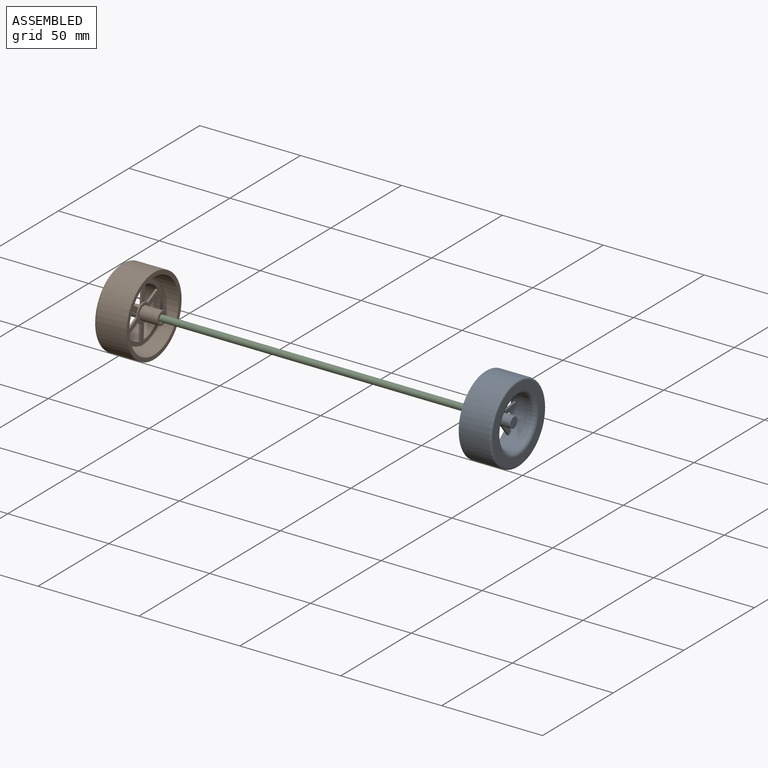
[diagram: assembled view]
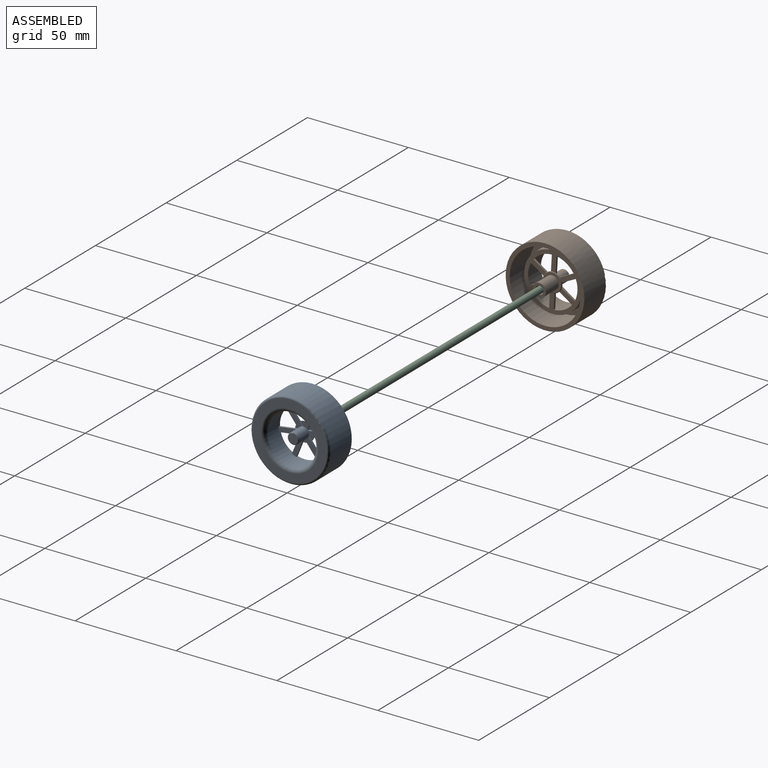
[diagram: assembled view, second angle]
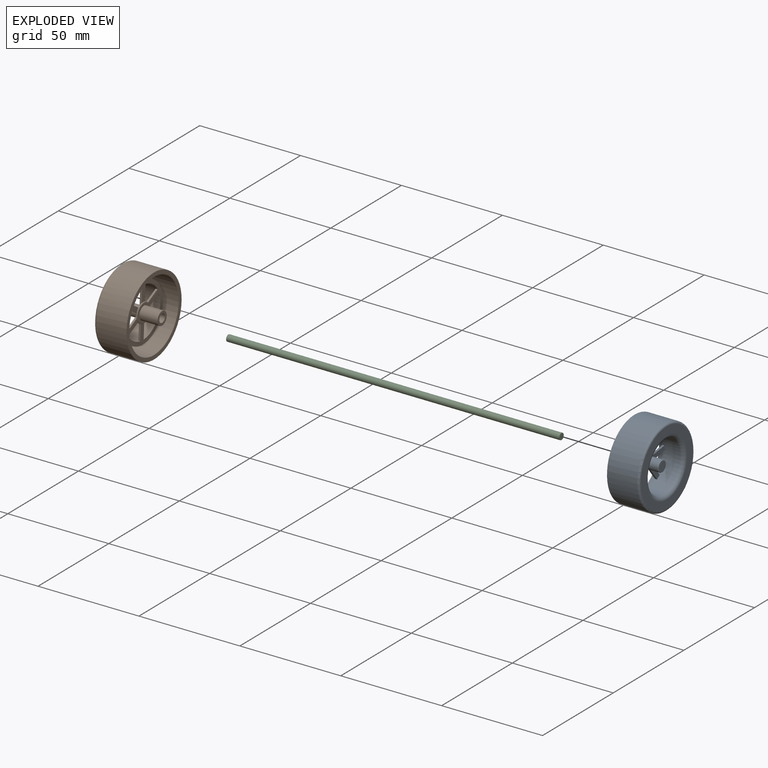
[diagram: exploded view]
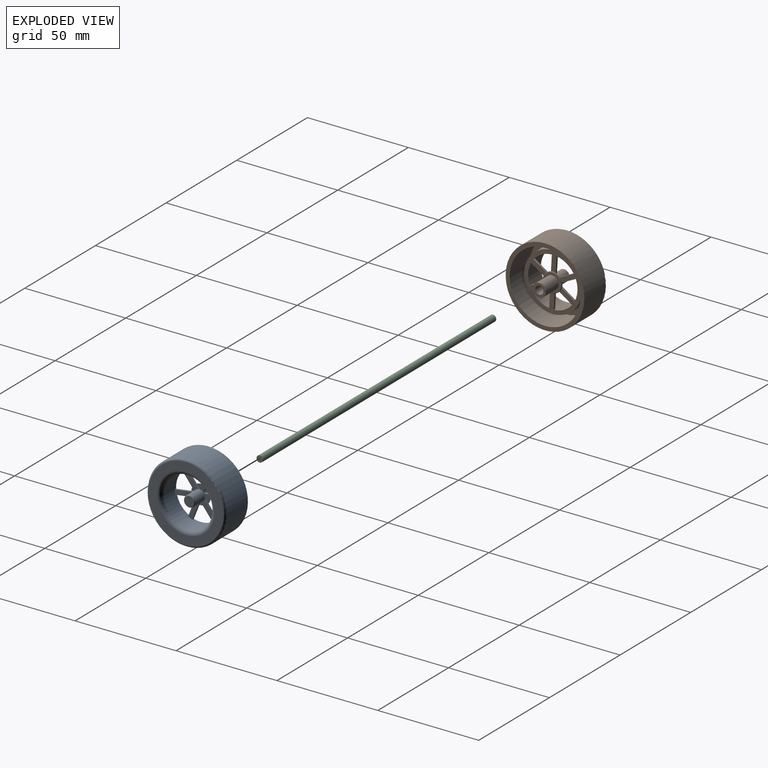
[diagram: exploded view, second angle]
ASSEMBLY  parts=3 mates=2
PART A: 44 faces, bbox 42.2x20x42.2 mm
  f0: plane 9.56x6.86mm, normal (0,-1,0), area 22.2mm2, adj f5,f24,f25,f41
  f1: plane 9.56x6.86mm, normal (0,-1,0), area 22.2mm2, adj f5,f22,f23,f41
  f2: plane 9.76x2.32mm, normal (0,-1,0), area 22.2mm2, adj f5,f14,f16,f41
  f3: plane 9.56x6.86mm, normal (0,-1,0), area 22.2mm2, adj f5,f19,f20,f41
  f4: plane 9.56x6.86mm, normal (0,-1,0), area 22.2mm2, adj f5,f18,f21,f41
  f5: cylinder r=12.25mm len=24.5mm, axis (0,1,0), area 640.3mm2, adj f0,f1,f2,f3,f4,f12,f13,f14
  f6: cylinder r=19.5mm len=39mm, axis (0,1,0), area 1837.8mm2, adj f8,f39
  f7: plane 37x37mm, normal (0,-1,0), area 437.3mm2, adj f39,f40
  f8: plane 39x39mm, normal (0,1,0), area 232.5mm2, adj f6,f10
  f9: cylinder r=14.25mm len=28.5mm, axis (0,1,0), area 761.1mm2, adj f11,f12
  f10: cylinder r=17.5mm len=35mm, axis (0,1,0), area 1539.4mm2, adj f8,f11
  f11: plane 35x35mm, normal (0,1,0), area 324.2mm2, adj f9,f10
  f12: plane 28.5x28.5mm, normal (0,1,0), area 271.3mm2, adj f5,f9,f14,f15,f16,f17,f18,f19
  f13: plane 9.76x2.32mm, normal (0,-1,0), area 22.2mm2, adj f5,f15,f17,f41
  f14: plane 9.7x1mm, normal (1,0,0), area 9.7mm2, adj f2,f5,f12,f29,f41
  f15: plane 9.7x1mm, normal (-1,0,0), area 9.7mm2, adj f5,f12,f13,f28,f41
  f16: plane 9.7x1mm, normal (-1,0,0), area 9.7mm2, adj f2,f5,f12,f30,f41
  f17: plane 9.7x1mm, normal (1,0,0), area 9.7mm2, adj f5,f12,f13,f26,f41
  f18: plane 8.4x4.85mm, normal (-0.5,0,-0.87), area 9.7mm2, adj f4,f5,f12,f27,f41
  f19: plane 8.4x4.85mm, normal (-0.5,0,0.87), area 9.7mm2, adj f3,f5,f12,f27,f41
  f20: plane 8.4x4.85mm, normal (0.5,0,-0.87), area 9.7mm2, adj f3,f5,f12,f30,f41
  f21: plane 8.4x4.85mm, normal (0.5,0,0.87), area 9.7mm2, adj f4,f5,f12,f28,f41
  f22: plane 8.4x4.85mm, normal (-0.5,0,-0.87), area 9.7mm2, adj f1,f5,f12,f29,f41
  f23: plane 8.4x4.85mm, normal (0.5,0,0.87), area 9.7mm2, adj f1,f5,f12,f33,f41
  f24: plane 8.4x4.85mm, normal (-0.5,0,0.87), area 9.7mm2, adj f0,f5,f12,f26,f41
  f25: plane 8.4x4.85mm, normal (0.5,0,-0.87), area 9.7mm2, adj f0,f5,f12,f33,f41
  f26: plane 2.36x2.25mm, normal (0,-1,0), area 3.1mm2, adj f17,f24,f31,f41
  f27: plane 2.6x2.01mm, normal (0,-1,0), area 3.1mm2, adj f18,f19,f31,f41
  f28: plane 2.36x2.25mm, normal (0,-1,0), area 3.1mm2, adj f15,f21,f31,f41
  f29: plane 2.36x2.25mm, normal (0,-1,0), area 3.1mm2, adj f14,f22,f31,f41
  f30: plane 2.36x2.25mm, normal (0,-1,0), area 3.1mm2, adj f16,f20,f31,f41
  f31: cylinder r=4.75mm len=9.5mm, axis (0,-1,0), area 9mm2, adj f12,f26,f27,f28,f29,f30,f33,f34
  f32: plane 9.1x9.1mm, normal (0,1,0), area 31.9mm2, adj f34,f35
  f33: plane 2.6x2.01mm, normal (0,-1,0), area 3.1mm2, adj f23,f25,f31,f41
  f34: torus R=4.55mm, axis (0,1,0), area 9.2mm2, adj f31,f32
  f35: cylinder r=3.25mm len=9mm, axis (0,-1,0), area 183.8mm2, adj f32,f36
  f36: plane 6.5x6.5mm, normal (0,1,0), area 20.6mm2, adj f35,f37
  f37: cylinder r=2mm len=7.7mm, axis (0,1,0), area 96.7mm2, adj f36,f38
  f38: plane 4x4mm, normal (0,1,0), area 12.6mm2, adj f37
  f39: torus R=18.5mm, axis (0,-1,0), area 188.9mm2, adj f6,f7
  f40: torus R=14.25mm, axis (0,-1,0), area 256.2mm2, adj f5,f7
  f41: cylinder r=2.75mm len=7.88mm, axis (0,1,0), area 121.8mm2, adj f0,f1,f2,f3,f4,f13,f14,f15
  f42: plane 4.8x4.8mm, normal (0,-1,0), area 18.1mm2, adj f43
  f43: torus R=2.4mm, axis (0,1,0), area 9.1mm2, adj f41,f42
PART B: same geometry as A
PART C: 3 faces, bbox 3.2x165.1x3.2 mm
  f0: cylinder r=1.59mm len=165.1mm, axis (0,1,0), area 1646.8mm2, adj f1,f2
  f1: plane 3.18x3.18mm, normal (0,-1,0), area 7.9mm2, adj f0
  f2: plane 3.18x3.18mm, normal (0,1,0), area 7.9mm2, adj f0
PLACE A rot(axis=(0.6,-0.6,0.52),124.8deg) t=(90.05,0,0)mm
PLACE B rot(axis=(0.43,0.43,-0.79),103.1deg) t=(-90.55,0,0)mm
PLACE C rot(axis=(-0.58,-0.58,-0.58),120deg) t=(0,0,0)mm
MATE revolute C.f0 <-> A.f5  axis (1,0,0) through (82.55,0,0)mm
MATE revolute C.f0 <-> B.f5  axis (-1,0,0) through (-82.55,0,0)mm
